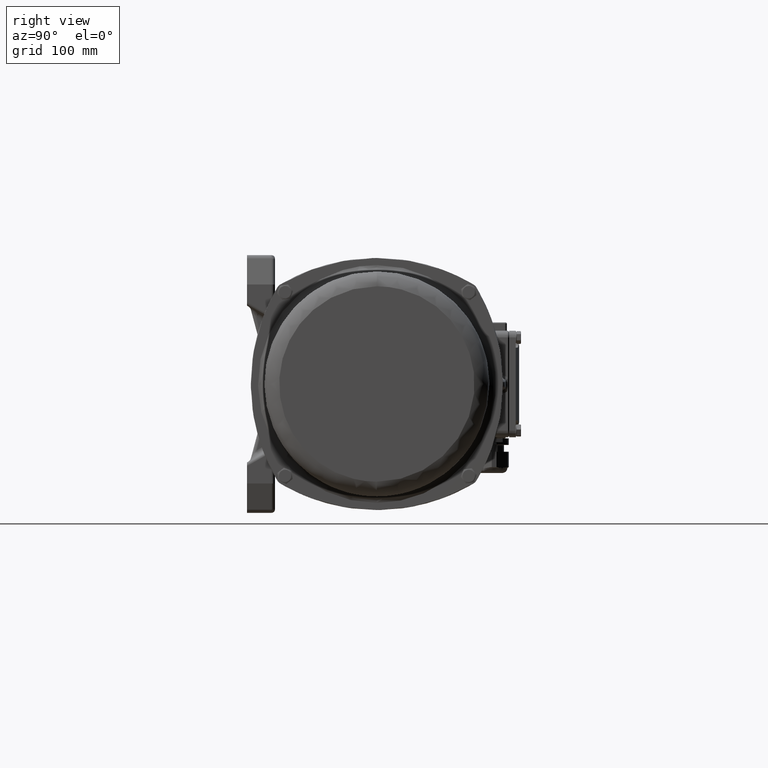
[diagram: clean part render]
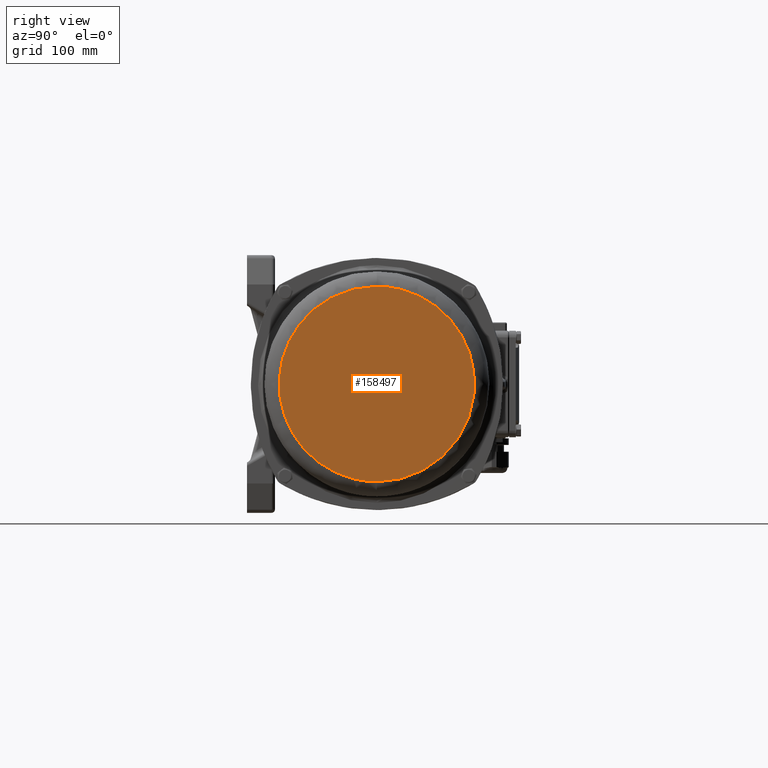
[diagram: same view with one face highlighted and labeled with its STEP entity id]
A machine part, right view. The second image highlights one B-rep face of the part: STEP entity #158497.
In plain terms, the highlighted planar face has unit normal (-1, 0, 0).
Its self-contained STEP definition (entity closure, byte-faithful):
#1012 = CARTESIAN_POINT ( 'NONE',  ( 240.0932252713527900, 663.6803906997978400, -76.04118171929440000 ) ) ;
#6179 = CARTESIAN_POINT ( 'NONE',  ( 240.0932293183655300, 786.1907822302637200, 14.86392455412347100 ) ) ;
#6740 = CARTESIAN_POINT ( 'NONE',  ( 240.0932308253004000, 831.8084338654584800, -95.38735039232076900 ) ) ;
#7296 = CARTESIAN_POINT ( 'NONE',  ( 240.0932296510099500, 796.2605337505401600, 9.479474974417790600 ) ) ;
#7861 = CARTESIAN_POINT ( 'NONE',  ( 240.0932290762048600, 778.8601523770437300, -146.9694356375956900 ) ) ;
#8427 = CARTESIAN_POINT ( 'NONE',  ( 240.0932309857886400, 836.6667025049447400, -76.04146554707314500 ) ) ;
#9391 = EDGE_CURVE ( 'NONE', #72762, #80848, #39942, .T. ) ;
#11864 = CARTESIAN_POINT ( 'NONE',  ( 240.0932264493630700, 699.3408887386278800, 6.307140508271519500 ) ) ;
#12989 = CARTESIAN_POINT ( 'NONE',  ( 240.0932255051875200, 670.7589935695770000, -100.6453274148850300 ) ) ;
#13555 = CARTESIAN_POINT ( 'NONE',  ( 240.0932259628654000, 684.6137327530555000, -122.1677872430295400 ) ) ;
#19258 = CARTESIAN_POINT ( 'NONE',  ( 240.0932288746520300, 772.7587740866421200, 19.67112395084809900 ) ) ;
#19822 = CARTESIAN_POINT ( 'NONE',  ( 240.0932292081787700, 782.8552422483402300, -145.4485658812790800 ) ) ;
#20389 = CARTESIAN_POINT ( 'NONE',  ( 240.0932283170197600, 755.8782353536589700, 22.45839033742471400 ) ) ;
#20937 = CARTESIAN_POINT ( 'NONE',  ( 240.0932304140131600, 819.3580289137301000, -117.7570217806841400 ) ) ;
#21487 = CARTESIAN_POINT ( 'NONE',  ( 240.0932295701476600, 793.8126832621915100, 10.94708074435674500 ) ) ;
#22692 = CARTESIAN_POINT ( 'NONE',  ( 240.0932261578285500, 690.5156120613444300, -0.9389618720504147000 ) ) ;
#23236 = CARTESIAN_POINT ( 'NONE',  ( 240.0932253443230900, 665.8893303192848000, -42.05991183088271900 ) ) ;
#23785 = CARTESIAN_POINT ( 'NONE',  ( 240.0932263736504500, 697.0489307823355600, 4.606379471965862400 ) ) ;
#25453 = CARTESIAN_POINT ( 'NONE',  ( 240.0932281285716400, 750.1735775309388100, -151.8014404296895600 ) ) ;
#26026 = CARTESIAN_POINT ( 'NONE',  ( 240.0932276595322300, 735.9749083856061100, -150.6850259265540300 ) ) ;
#26603 = CARTESIAN_POINT ( 'NONE',  ( 240.0932253221282300, 665.2174587369258900, -84.46250753620685700 ) ) ;
#27722 = CARTESIAN_POINT ( 'NONE',  ( 240.0932261594865600, 690.5658096466063400, -128.3108668065355900 ) ) ;
#32296 = CARTESIAN_POINT ( 'NONE',  ( 240.0932297081826100, 797.9912613595898800, -137.5246172465530800 ) ) ;
#32865 = CARTESIAN_POINT ( 'NONE',  ( 240.0932291424061300, 780.8641833087270900, -146.2252111566417100 ) ) ;
#33423 = CARTESIAN_POINT ( 'NONE',  ( 240.0932310090887000, 837.3720375231201800, -67.50075431369921800 ) ) ;
#33974 = CARTESIAN_POINT ( 'NONE',  ( 240.0932309120520600, 834.4345649667700400, -87.23046617114432900 ) ) ;
#34539 = CARTESIAN_POINT ( 'NONE',  ( 240.0932300278181800, 807.6672073920792600, -130.2249701948728700 ) ) ;
#35738 = CARTESIAN_POINT ( 'NONE',  ( 240.0932257853068000, 679.2387063942790100, -13.80549510611430700 ) ) ;
#37335 = CARTESIAN_POINT ( 'NONE',  ( 240.0932281285716400, 750.1735775309388100, -151.8014404296895600 ) ) ;
#37950 = CARTESIAN_POINT ( 'NONE',  ( 240.0932255668286900, 672.6249848867480500, -104.5008460481757600 ) ) ;
#38525 = CARTESIAN_POINT ( 'NONE',  ( 240.0932254860585100, 670.1799239371358700, -99.34156322072217900 ) ) ;
#39081 = CARTESIAN_POINT ( 'NONE',  ( 240.0932274746399700, 730.3778875128756500, -149.5726520256020800 ) ) ;
#39648 = CARTESIAN_POINT ( 'NONE',  ( 240.0932256822291900, 676.1183659543884200, -110.7290031812345900 ) ) ;
#39942 = B_SPLINE_CURVE_WITH_KNOTS ( 'NONE', 3,
 ( #135634, #55579, #148653, #161688, #42547, #110066, #46988, #163356, #7861, #32865, #150875, #19822, #112290, #46445, #136748, #123732, #149766, #32296, #60596, #86197, #34539, #111739, #72577, #98693, #20937, #125418, #84526, #59469, #45890, #111185, #6740, #73125, #33974, #124300, #72022, #8427, #124856, #33423, #58916, #150314, #97570, #47563, #138427, #137298, #164462, #123175, #85640, #137865, #60026, #58360, #110633, #162808, #45343, #149202, #163907, #85085, #99247, #151437, #7296, #21487, #73687, #6179, #136182, #97021, #19258, #71466, #98135, #162249, #20389, #100371, #152000 ),
 .UNSPECIFIED., .F., .F.,
 ( 4, 2, 2, 2, 1, 2, 2, 1, 1, 2, 2, 2, 2, 2, 2, 2, 2, 2, 2, 2, 2, 2, 2, 2, 2, 2, 2, 2, 2, 2, 2, 2, 2, 2, 2, 2, 4 ),
 ( 0.0000000000000000000, 0.03124999999999700900, 0.06249999999999401900, 0.09374999999999103500, 0.1093749999999894900, 0.1171874999999893000, 0.1249999999999890900, 0.1562499999999881800, 0.1718749999999883400, 0.1796874999999884300, 0.1874999999999885100, 0.2187499999999888400, 0.2499999999999891800, 0.2812499999999896200, 0.3124999999999900600, 0.3437499999999905100, 0.3749999999999909500, 0.4062499999999914500, 0.4374999999999919000, 0.4687499999999923400, 0.4999999999999927800, 0.5312499999999932300, 0.5624999999999936700, 0.5937499999999941200, 0.6249999999999945600, 0.6562499999999950000, 0.6874999999999954500, 0.7187499999999958900, 0.7499999999999963400, 0.7812499999999968900, 0.8124999999999973400, 0.8437499999999977800, 0.8749999999999982200, 0.9062499999999986700, 0.9374999999999991100, 0.9687499999999995600, 1.000000000000000000 ),
 .UNSPECIFIED. ) ;
#42547 = CARTESIAN_POINT ( 'NONE',  ( 240.0932285976107600, 764.3722421664861000, -150.6849928706884900 ) ) ;
#45127 = EDGE_LOOP ( 'NONE', ( #69905, #82115 ) ) ;
#45343 = CARTESIAN_POINT ( 'NONE',  ( 240.0932302959153600, 815.7829860744504900, -7.091776924784062100 ) ) ;
#45890 = CARTESIAN_POINT ( 'NONE',  ( 240.0932307126290900, 828.3976725478945600, -103.2392699362639800 ) ) ;
#46445 = CARTESIAN_POINT ( 'NONE',  ( 240.0932294449920300, 790.0240067985629400, -142.2557766134638900 ) ) ;
#46988 = CARTESIAN_POINT ( 'NONE',  ( 240.0932288738576700, 772.7347341472677700, -148.8805643768431500 ) ) ;
#47563 = CARTESIAN_POINT ( 'NONE',  ( 240.0932309723965800, 836.2612987719237500, -50.42792408650461100 ) ) ;
#49322 = CARTESIAN_POINT ( 'NONE',  ( 240.0932252847454200, 664.0858078406653200, -50.42799517362382000 ) ) ;
#49873 = CARTESIAN_POINT ( 'NONE',  ( 240.0932262276727200, 692.6299191351681700, 0.9781601627604724600 ) ) ;
#50429 = CARTESIAN_POINT ( 'NONE',  ( 240.0932277521517600, 738.7786591697889700, 21.89776303912977400 ) ) ;
#51537 = CARTESIAN_POINT ( 'NONE',  ( 240.0932264508950600, 699.3872762907296900, -135.5432057997915100 ) ) ;
#55579 = CARTESIAN_POINT ( 'NONE',  ( 240.0932282228156400, 753.0265158094285900, -151.8014404245192000 ) ) ;
#58360 = CARTESIAN_POINT ( 'NONE',  ( 240.0932305765505200, 824.2783209589760000, -18.55287862894670400 ) ) ;
#58916 = CARTESIAN_POINT ( 'NONE',  ( 240.0932310091896500, 837.3750928716228800, -61.79246180399542300 ) ) ;
#59469 = CARTESIAN_POINT ( 'NONE',  ( 240.0932306234241500, 825.6972745820058900, -108.2827030393568600 ) ) ;
#60026 = CARTESIAN_POINT ( 'NONE',  ( 240.0932306249918600, 825.7447281359881100, -21.00146943201874100 ) ) ;
#60596 = CARTESIAN_POINT ( 'NONE',  ( 240.0932298062377600, 800.9595682161541400, -135.5434528273378900 ) ) ;
#62933 = CARTESIAN_POINT ( 'NONE',  ( 240.0932255028940000, 670.6895622796062100, -28.62539372935616900 ) ) ;
#63484 = CARTESIAN_POINT ( 'NONE',  ( 240.0932266869951900, 706.5344446449918200, 10.94710412241351000 ) ) ;
#64623 = CARTESIAN_POINT ( 'NONE',  ( 240.0932256336924700, 674.6490742166500900, -108.2812682029936900 ) ) ;
#65828 = PLANE ( 'NONE',  #79146 ) ;
#69905 = ORIENTED_EDGE ( 'NONE', *, *, #144849, .T. ) ;
#71466 = CARTESIAN_POINT ( 'NONE',  ( 240.0932287831982400, 769.9902999428330800, 20.36491119904904700 ) ) ;
#72022 = CARTESIAN_POINT ( 'NONE',  ( 240.0932309719086400, 836.2465298381566800, -78.86411007428509400 ) ) ;
#72577 = CARTESIAN_POINT ( 'NONE',  ( 240.0932302309973600, 813.8178077488502100, -124.2788696170893000 ) ) ;
#72762 = VERTEX_POINT ( 'NONE', #37335 ) ;
#73125 = CARTESIAN_POINT ( 'NONE',  ( 240.0932308571274800, 832.7718969614489900, -92.69963144637002000 ) ) ;
#73687 = CARTESIAN_POINT ( 'NONE',  ( 240.0932294035884800, 788.7706361884572700, 13.64319638532357500 ) ) ;
#74910 = CARTESIAN_POINT ( 'NONE',  ( 240.0932280342808300, 747.3192154281350700, 22.59855956514105900 ) ) ;
#75464 = CARTESIAN_POINT ( 'NONE',  ( 240.0932252479549300, 662.9720952907453000, -61.79252865426032300 ) ) ;
#76020 = CARTESIAN_POINT ( 'NONE',  ( 240.0932252480536400, 662.9750838064622900, -67.50068809556633200 ) ) ;
#76584 = CARTESIAN_POINT ( 'NONE',  ( 240.0932254307981300, 668.5070869751341400, -33.90009559139421200 ) ) ;
#77711 = CARTESIAN_POINT ( 'NONE',  ( 240.0932268548963900, 711.6171262624880000, -142.8663383263584000 ) ) ;
#78350 = CARTESIAN_POINT ( 'NONE',  ( 240.0932252479709900, 662.9725772148217400, 22.59955941232677600 ) ) ;
#79146 = AXIS2_PLACEMENT_3D ( 'NONE', #78350, #80043, #91447 ) ;
#79396 = CARTESIAN_POINT ( 'NONE',  ( 240.0932254000237000, 667.5754955184056600, -92.70052791034432000 ) ) ;
#80043 = DIRECTION ( 'NONE',  ( -0.9999999999999994400, 3.303403499999997100E-008, 1.989848741347609500E-015 ) ) ;
#80848 = VERTEX_POINT ( 'NONE', #145917 ) ;
#82115 = ORIENTED_EDGE ( 'NONE', *, *, #9391, .T. ) ;
#84526 = CARTESIAN_POINT ( 'NONE',  ( 240.0932305749426200, 824.2296523456988100, -110.7277724697640100 ) ) ;
#85085 = CARTESIAN_POINT ( 'NONE',  ( 240.0932300294698800, 807.7171993233412200, 0.9781469074130724200 ) ) ;
#85640 = CARTESIAN_POINT ( 'NONE',  ( 240.0932307542507500, 829.6576311431726900, -28.62539990452431100 ) ) ;
#86197 = CARTESIAN_POINT ( 'NONE',  ( 240.0932298819328400, 803.2509952181119400, -133.8457500938745900 ) ) ;
#87435 = CARTESIAN_POINT ( 'NONE',  ( 240.0932276588908700, 735.9554830847251900, 21.47892553220524200 ) ) ;
#88004 = CARTESIAN_POINT ( 'NONE',  ( 240.0932255431750700, 671.9089415972772500, -26.04493532084315200 ) ) ;
#88569 = CARTESIAN_POINT ( 'NONE',  ( 240.0932271129858000, 719.4299492338860800, 17.04911414020174800 ) ) ;
#89667 = CARTESIAN_POINT ( 'NONE',  ( 240.0932272017533100, 722.1170998616933000, 18.01084984594286100 ) ) ;
#90232 = CARTESIAN_POINT ( 'NONE',  ( 240.0932258431461400, 680.9896142033624100, -117.7575637660708000 ) ) ;
#90801 = CARTESIAN_POINT ( 'NONE',  ( 240.0932254318485900, 668.5388904244008500, -95.38767174176737700 ) ) ;
#91447 = DIRECTION ( 'NONE',  ( 3.303403499999997800E-008, 0.9999999999999994400, 1.812304999999998900E-009 ) ) ;
#91916 = CARTESIAN_POINT ( 'NONE',  ( 240.0932266078038100, 704.1371882648518300, -138.7135632765730100 ) ) ;
#97021 = CARTESIAN_POINT ( 'NONE',  ( 240.0932290553900000, 778.2300385807141100, 18.01082002419066400 ) ) ;
#97570 = CARTESIAN_POINT ( 'NONE',  ( 240.0932309861849800, 836.6786987406765100, -53.25138735010204300 ) ) ;
#98135 = CARTESIAN_POINT ( 'NONE',  ( 240.0932285982532300, 764.3916814280655700, 21.47895762187328500 ) ) ;
#98693 = CARTESIAN_POINT ( 'NONE',  ( 240.0932302942616700, 815.7329340228009200, -122.1683287400218800 ) ) ;
#99247 = CARTESIAN_POINT ( 'NONE',  ( 240.0932298834945300, 803.2982597622265100, 4.606393128442938700 ) ) ;
#99267 = B_SPLINE_CURVE_WITH_KNOTS ( 'NONE', 3,
 ( #128294, #74910, #165127, #50429, #87435, #102105, #154322, #89667, #88569, #101560, #114618, #63484, #100463, #11864, #23785, #49873, #22692, #113505, #115179, #140749, #35738, #126640, #165675, #88004, #62933, #76584, #101015, #23236, #114066, #49322, #140201, #153226, #75464, #76020, #168466, #1012, #129966, #26603, #157124, #79396, #90801, #38525, #12989, #103786, #37950, #64623, #39648, #167894, #90232, #13555, #117449, #27722, #130535, #142410, #51537, #91916, #155435, #77711, #129410, #144107, #142973, #131086, #39081, #26026, #103229, #116876, #116307, #25453 ),
 .UNSPECIFIED., .F., .F.,
 ( 4, 2, 2, 2, 2, 2, 2, 2, 2, 2, 2, 2, 2, 2, 2, 2, 2, 2, 2, 2, 2, 2, 2, 2, 2, 2, 2, 2, 2, 2, 2, 2, 2, 4 ),
 ( 0.0000000000000000000, 0.03124999999999988900, 0.06249999999999977800, 0.09374999999999966700, 0.1249999999999995600, 0.1562499999999994400, 0.1874999999999993300, 0.2187499999999992200, 0.2499999999999991100, 0.2812499999999990000, 0.3124999999999988900, 0.3437499999999987800, 0.3749999999999986700, 0.4062499999999985600, 0.4374999999999984500, 0.4687499999999983300, 0.4999999999999982200, 0.5312499999999981100, 0.5624999999999980000, 0.5937499999999978900, 0.6249999999999977800, 0.6406249999999978900, 0.6562499999999981100, 0.6874999999999984500, 0.7187499999999987800, 0.7499999999999991100, 0.7812499999999992200, 0.8124999999999993300, 0.8437499999999994400, 0.8749999999999995600, 0.9062499999999996700, 0.9374999999999997800, 0.9687499999999998900, 1.000000000000000000 ),
 .UNSPECIFIED. ) ;
#100371 = CARTESIAN_POINT ( 'NONE',  ( 240.0932282228741000, 753.0282784802801600, 22.59855957548761700 ) ) ;
#100463 = CARTESIAN_POINT ( 'NONE',  ( 240.0932266061348300, 704.0866525334081400, 9.479455907903041400 ) ) ;
#101015 = CARTESIAN_POINT ( 'NONE',  ( 240.0932253990760900, 667.5468046968122700, -36.58777798764384000 ) ) ;
#101560 = CARTESIAN_POINT ( 'NONE',  ( 240.0932269387775800, 714.1563506214420200, 14.86395161218471900 ) ) ;
#102105 = CARTESIAN_POINT ( 'NONE',  ( 240.0932274739451800, 730.3568444160214300, 20.36494316535411600 ) ) ;
#103229 = CARTESIAN_POINT ( 'NONE',  ( 240.0932277526622700, 738.7941263427180700, -151.1028441596784300 ) ) ;
#103667 = FACE_OUTER_BOUND ( 'NONE', #45127, .T. ) ;
#103786 = CARTESIAN_POINT ( 'NONE',  ( 240.0932255455635100, 671.9812497575186400, -103.2244565388998600 ) ) ;
#110066 = CARTESIAN_POINT ( 'NONE',  ( 240.0932287825032500, 769.9692720466620100, -149.5726849582509000 ) ) ;
#110633 = CARTESIAN_POINT ( 'NONE',  ( 240.0932304718383000, 821.1084933682224100, -13.80550241887723600 ) ) ;
#111185 = CARTESIAN_POINT ( 'NONE',  ( 240.0932307530092100, 829.6200503360012100, -100.6598478126301500 ) ) ;
#111739 = CARTESIAN_POINT ( 'NONE',  ( 240.0932300976850500, 809.7822033639115500, -128.3099624599393000 ) ) ;
#112290 = CARTESIAN_POINT ( 'NONE',  ( 240.0932293172971300, 786.1584514482782400, -144.0817299587431800 ) ) ;
#113505 = CARTESIAN_POINT ( 'NONE',  ( 240.0932260245221200, 686.4801858949201700, -4.976438802289636400 ) ) ;
#114066 = CARTESIAN_POINT ( 'NONE',  ( 240.0932253214522200, 665.1969908917360500, -44.82866102230213600 ) ) ;
#114618 = CARTESIAN_POINT ( 'NONE',  ( 240.0932268535561600, 711.5765448385419600, 13.64317270919256600 ) ) ;
#115179 = CARTESIAN_POINT ( 'NONE',  ( 240.0932259612296200, 684.5642077634366800, -7.091781727311094100 ) ) ;
#116307 = CARTESIAN_POINT ( 'NONE',  ( 240.0932280343162100, 747.3202994757296000, -151.8014404348605000 ) ) ;
#116876 = CARTESIAN_POINT ( 'NONE',  ( 240.0932279402833800, 744.4737536270436100, -151.6617211818925500 ) ) ;
#117449 = CARTESIAN_POINT ( 'NONE',  ( 240.0932260261175800, 686.5284891794813100, -124.2779657172366300 ) ) ;
#123175 = CARTESIAN_POINT ( 'NONE',  ( 240.0932308263441800, 831.8400288520305100, -33.90008883211798700 ) ) ;
#123732 = CARTESIAN_POINT ( 'NONE',  ( 240.0932296484814700, 796.1839989413197100, -138.6784891030694700 ) ) ;
#124300 = CARTESIAN_POINT ( 'NONE',  ( 240.0932309350161200, 835.1297261214880300, -84.46218604715738800 ) ) ;
#124856 = CARTESIAN_POINT ( 'NONE',  ( 240.0932310044084700, 837.2303590567794300, -70.35128931134784100 ) ) ;
#125418 = CARTESIAN_POINT ( 'NONE',  ( 240.0932304701312300, 821.0568217494255800, -115.4697337692138300 ) ) ;
#126640 = CARTESIAN_POINT ( 'NONE',  ( 240.0932256805916200, 676.0687884191218000, -18.55288646742194900 ) ) ;
#128294 = CARTESIAN_POINT ( 'NONE',  ( 240.0932281285718700, 750.1735772148728100, 22.59855957031403800 ) ) ;
#129410 = CARTESIAN_POINT ( 'NONE',  ( 240.0932269400453000, 714.1947379046790700, -144.0841910545091200 ) ) ;
#129966 = CARTESIAN_POINT ( 'NONE',  ( 240.0932252852338400, 664.1005949187369900, -78.86378920514972900 ) ) ;
#130535 = CARTESIAN_POINT ( 'NONE',  ( 240.0932262293418100, 692.6804577276151300, -130.2253456613188700 ) ) ;
#131086 = CARTESIAN_POINT ( 'NONE',  ( 240.0932273832885400, 727.6125135862433800, -148.8806273005522500 ) ) ;
#135634 = CARTESIAN_POINT ( 'NONE',  ( 240.0932281285716400, 750.1735775309388100, -151.8014404296895600 ) ) ;
#136182 = CARTESIAN_POINT ( 'NONE',  ( 240.0932291441587000, 780.9172268220486300, 17.04914144024515800 ) ) ;
#136748 = CARTESIAN_POINT ( 'NONE',  ( 240.0932295882869600, 794.3618039170232800, -139.8004347937247800 ) ) ;
#137298 = CARTESIAN_POINT ( 'NONE',  ( 240.0932309128194800, 834.4577924009620300, -42.05992086902062300 ) ) ;
#137865 = CARTESIAN_POINT ( 'NONE',  ( 240.0932307139669300, 828.4381643490477200, -26.04491457280251200 ) ) ;
#138427 = CARTESIAN_POINT ( 'NONE',  ( 240.0932309356928400, 835.1502118642559900, -44.82873148937967800 ) ) ;
#140201 = CARTESIAN_POINT ( 'NONE',  ( 240.0932252709601800, 663.6685043335229500, -53.25123536285009600 ) ) ;
#140749 = CARTESIAN_POINT ( 'NONE',  ( 240.0932258414487100, 680.9382213979207600, -11.51262847402702100 ) ) ;
#142410 = CARTESIAN_POINT ( 'NONE',  ( 240.0932263751934400, 697.0956496426598500, -133.8453750282055800 ) ) ;
#142973 = CARTESIAN_POINT ( 'NONE',  ( 240.0932272029062600, 722.1520145162120300, -147.2256924602039000 ) ) ;
#144107 = CARTESIAN_POINT ( 'NONE',  ( 240.0932271142359900, 719.4678039943851200, -146.2662065807407100 ) ) ;
#144849 = EDGE_CURVE ( 'NONE', #80848, #72762, #99267, .T. ) ;
#145917 = CARTESIAN_POINT ( 'NONE',  ( 240.0932281285718700, 750.1735772148728100, 22.59855957031403800 ) ) ;
#148653 = CARTESIAN_POINT ( 'NONE',  ( 240.0932283168807300, 755.8740351563647000, -151.6616253801213600 ) ) ;
#149202 = CARTESIAN_POINT ( 'NONE',  ( 240.0932302326203000, 813.8669305261354300, -4.976447673083551800 ) ) ;
#149766 = CARTESIAN_POINT ( 'NONE',  ( 240.0932296883405300, 797.3906043167138500, -137.9150461227795300 ) ) ;
#150314 = CARTESIAN_POINT ( 'NONE',  ( 240.0932310046057100, 837.2363274276209500, -58.94159157966709000 ) ) ;
#150875 = CARTESIAN_POINT ( 'NONE',  ( 240.0932291863483100, 782.1943923690939800, -145.7125720306920000 ) ) ;
#151437 = CARTESIAN_POINT ( 'NONE',  ( 240.0932298077796400, 801.0062339435170300, 6.307121793052674600 ) ) ;
#152000 = CARTESIAN_POINT ( 'NONE',  ( 240.0932281285718700, 750.1735772148728100, 22.59855957031403800 ) ) ;
#153226 = CARTESIAN_POINT ( 'NONE',  ( 240.0932252525362000, 663.1107789281486500, -58.94174419603521600 ) ) ;
#154322 = CARTESIAN_POINT ( 'NONE',  ( 240.0932273824922400, 727.5883963576806100, 19.67109394553964200 ) ) ;
#155435 = CARTESIAN_POINT ( 'NONE',  ( 240.0932266886495400, 706.5845331078743400, -140.1789239537068300 ) ) ;
#157124 = CARTESIAN_POINT ( 'NONE',  ( 240.0932253450834300, 665.9123522288648500, -87.22957031197010700 ) ) ;
#158497 = ADVANCED_FACE ( 'NONE', ( #103667 ), #65828, .F. ) ;
#161688 = CARTESIAN_POINT ( 'NONE',  ( 240.0932285044598000, 761.5523949945898000, -151.1029398995441100 ) ) ;
#162249 = CARTESIAN_POINT ( 'NONE',  ( 240.0932285049975400, 761.5686603163554800, 21.89771337482587700 ) ) ;
#162808 = CARTESIAN_POINT ( 'NONE',  ( 240.0932304156937400, 819.4088938549391500, -11.51263278779440000 ) ) ;
#163356 = CARTESIAN_POINT ( 'NONE',  ( 240.0932290091396900, 776.8299694219622300, -147.6394574946387500 ) ) ;
#163907 = CARTESIAN_POINT ( 'NONE',  ( 240.0932300993165100, 809.8315805623541300, -0.9389525541559492500 ) ) ;
#164462 = CARTESIAN_POINT ( 'NONE',  ( 240.0932308580684900, 832.8003818913213100, -36.58776834451846600 ) ) ;
#165127 = CARTESIAN_POINT ( 'NONE',  ( 240.0932279401185700, 744.4687540227362200, 22.45834061114091200 ) ) ;
#165675 = CARTESIAN_POINT ( 'NONE',  ( 240.0932256321533800, 674.6024751115250000, -21.00144924157265800 ) ) ;
#167894 = CARTESIAN_POINT ( 'NONE',  ( 240.0932257869835700, 679.2894697936777700, -115.4685035830921300 ) ) ;
#168466 = CARTESIAN_POINT ( 'NONE',  ( 240.0932252527370000, 663.1168572924076400, -70.35157376817782900 ) ) ;